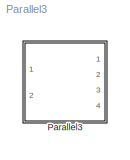
MODEL Parallel3
KIND model
CONFIG AbsTol = auto
CONFIG FixedStep = auto
CONFIG MaxStep = auto
CONFIG MinStep = auto
CONFIG RelTol = 1e-3
CONFIG Solver = ode45
CONFIG SolverMode = Auto
CONFIG StartTime = 0.0
CONFIG StopTime = 10.0
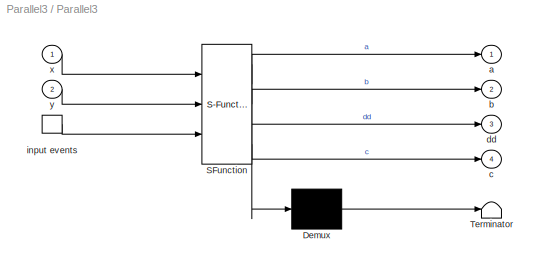
BLOCK [SubSystem] Parallel3
  MaskDescription = Stateflow diagram
  MaskDisplay = plot(sf('Private','sfblk','xIcon'),sf('Private','sfblk','yIcon'));text(0.5,0,sf('Private', 'sfblk', 'tIcon'),'HorizontalAl','Center','VerticalAl','Bottom');
  MaskIconFrame = off
  MaskIconOpaque = off
  MaskIconRotate = none
  MaskIconUnits = autoscale
  MaskSelfModifiable = on
  MaskType = Stateflow
  Ports = [2, 4, 0, 1]
  TreatAsAtomicUnit = off
BLOCK [Demux] Parallel3/ Demux 
  Outputs = 1
  Ports = [1, 1]
BLOCK [S-Function] Parallel3/ SFunction 
  FunctionName = sf_sfun
  PortCounts = [3 5]
  Ports = [3, 5]
  Tag = Stateflow S-Function Parallel3 1
BLOCK [Terminator] Parallel3/ Terminator 
BLOCK [TriggerPort] Parallel3/ input events 
  Ports = [0, 1]
  ShowOutputPort = on
  TriggerType = either
BLOCK [Outport] Parallel3/a
BLOCK [Outport] Parallel3/b
  Port = 2
BLOCK [Outport] Parallel3/c
  Port = 4
BLOCK [Outport] Parallel3/dd
  Port = 3
BLOCK [Inport] Parallel3/x
  PortDimensions = 1
BLOCK [Inport] Parallel3/y
  Port = 2
  PortDimensions = 1
LINE Parallel3/ Demux :1 -> Parallel3/ Terminator :1
LINE Parallel3/ SFunction :1 -> Parallel3/ Demux :1
LINE Parallel3/ SFunction :2 -> Parallel3/a:1
LINE Parallel3/ SFunction :3 -> Parallel3/b:1
LINE Parallel3/ SFunction :4 -> Parallel3/dd:1
LINE Parallel3/ SFunction :5 -> Parallel3/c:1
LINE Parallel3/ input events :1 -> Parallel3/ SFunction :3
LINE Parallel3/x:1 -> Parallel3/ SFunction :1
LINE Parallel3/y:1 -> Parallel3/ SFunction :2
CHART Parallel3 states=28 transitions=36
  STATE_LABEL 'A'
  STATE_LABEL 'A1'
  STATE_LABEL 'A1a/\\nen:a=x+1'
  STATE_LABEL 'A1b/\\nen:a=x+2'
  STATE_LABEL 'A2'
  STATE_LABEL 'A2a/\\nen:a=x+3'
  STATE_LABEL 'A2b/\\nen:a=x+4'
  STATE_LABEL 'B'
  STATE_LABEL 'B2'
  STATE_LABEL 'B2a/\\nen:b=x+7'
  STATE_LABEL 'B2b/\\nen:b=x+8'
  STATE_LABEL 'B1'
  STATE_LABEL 'B1a/\\nen:b=x+5'
  STATE_LABEL 'B1b/\\nen:b=x+6'
  STATE_LABEL 'C'
  STATE_LABEL 'C2'
  STATE_LABEL 'C2a/\\nen:c=y+3'
  STATE_LABEL 'C2b/\\nen:c=y+4'
  STATE_LABEL 'C1'
  STATE_LABEL 'C1a/\\nen:c=y+1'
  STATE_LABEL 'C1b/\\nen:c=y+2'
  STATE_LABEL 'D'
  STATE_LABEL 'D2'
  STATE_LABEL 'D2a/\\nen:dd=y+7'
  STATE_LABEL 'D2b/\\nen:dd=y+8'
  STATE_LABEL 'D1'
  STATE_LABEL 'D1a/\\nen:dd=y+5'
  STATE_LABEL 'D1b/\\nen:dd=y+6'
